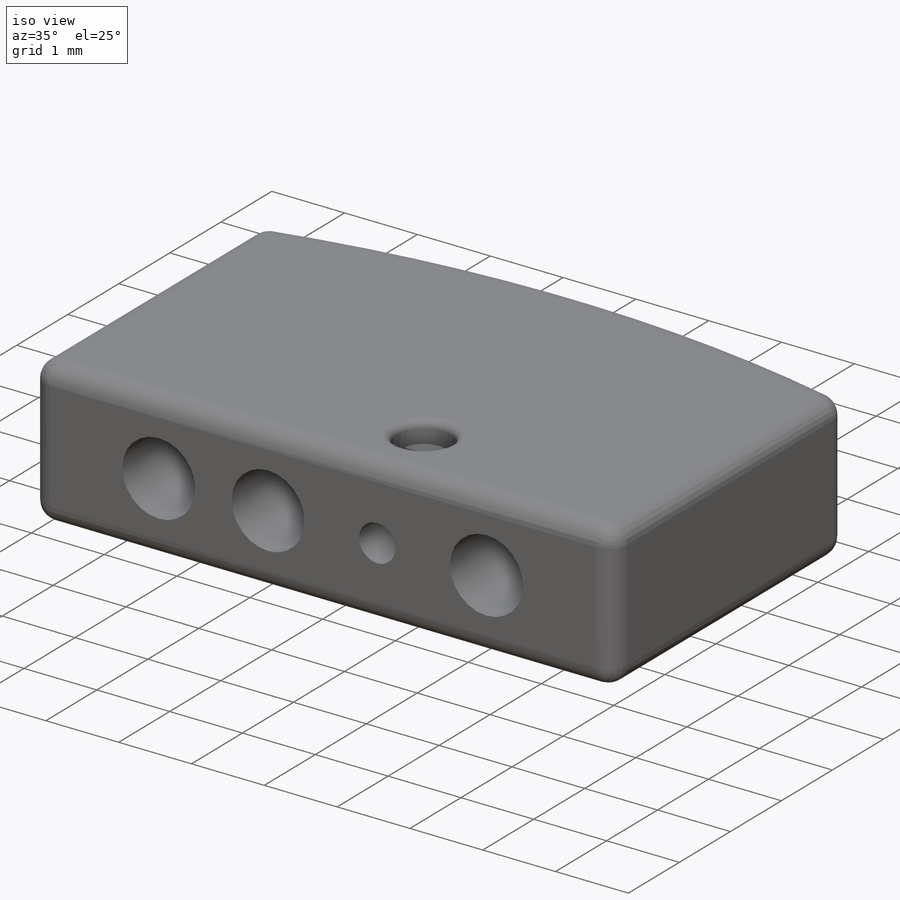
[diagram: iso view]
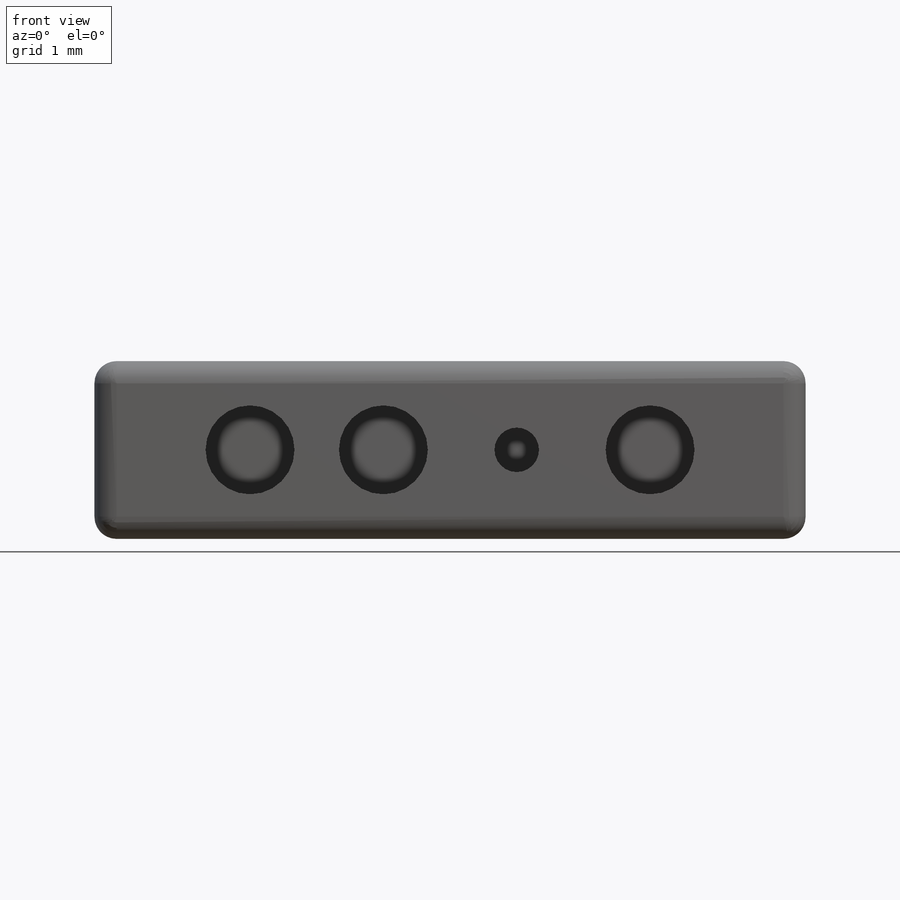
[diagram: front view]
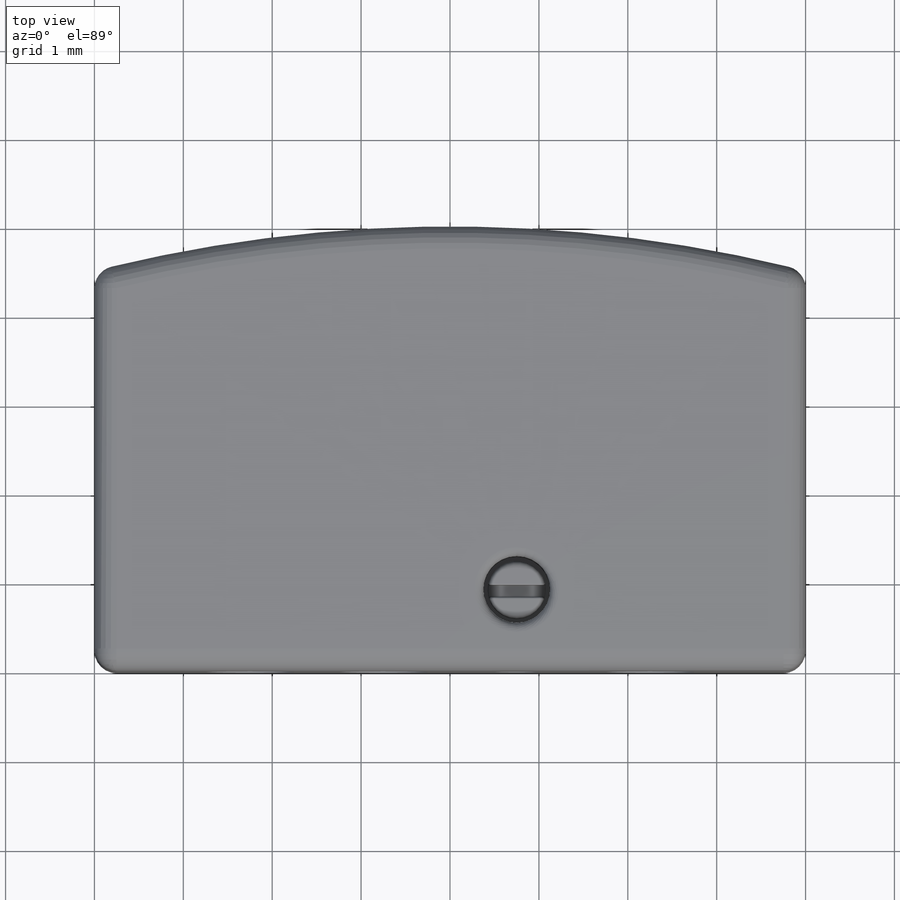
[diagram: top view]
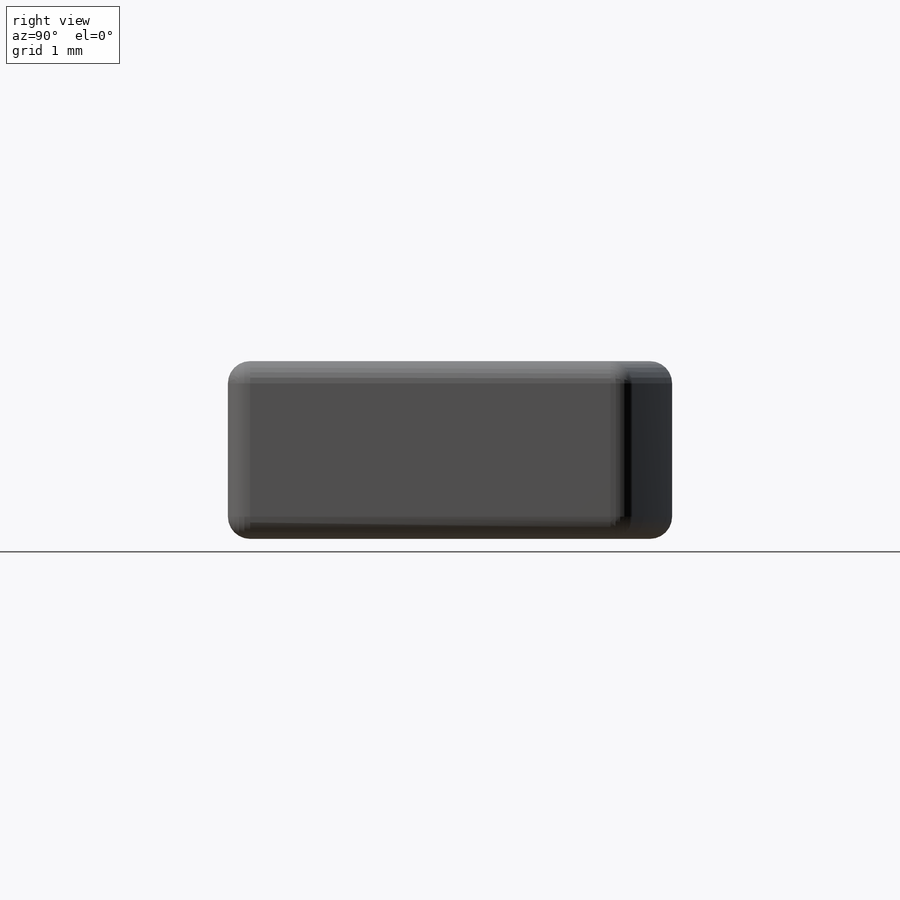
[diagram: right view]
SOLIDWORKS PART (.sldprt)
format: sldprt  version: not decoded by parser v0  size: 487,424 bytes
history: native  units: mm
features: sketch x6, fillet x5, cut_extrude x4, extrude x2, material x1, mirror x1 (+11 scaffold rows collapsed)
feature tree (30):
  scaffold x11  (default folders/planes/origin — collapsed)
  material  "Material <not specified>"
  sketch  "Sketch1"  dims[D1=8.0mm D2=4.0mm D3=2.0mm D4=1.0mm]
  extrude  "Boss-Extrude1"  Depth=5mm
  sketch  "Sketch2"  dims[D1=0.5mm D2=0.5mm]
  cut_extrude  "Cut-Extrude1"  Depth=5mm
  sketch  "Sketch3"  dims[D2=1.0mm D4=0.5mm D6=1.0mm D8=1.0mm D1=0.75mm D3=0.75mm D5=1.5mm D7=1.5mm]
  cut_extrude  "Cut-Extrude2"  Depth=2mm
  fillet  "Fillet1"  Radius=0.25mm
  sketch  "Sketch4"  dims[D1=0.75mm]
  cut_extrude  "Cut-Extrude3"  Depth=0.5mm
  sketch  "Sketch5"  dims[D1=0.65mm]
  extrude  "Boss-Extrude2"  Depth=0.25mm
  sketch  "Sketch6"  dims[D1=~0.692881mm]
  cut_extrude  "Cut-Extrude4"  Depth=0.1mm
  fillet  "Fillet2"  Radius=0.1mm
  fillet  "Fillet3"  Radius=0.05mm
  mirror  "Mirror3"
  fillet  "Fillet4"  Radius=0.02mm
  fillet  "Fillet5"  Radius=0.02mm
decode coverage: 17 of 18 modeling features carry decoded parameters
note: ~ marks probable driven/reference dimensions
note: suppression state not decoded; provenance and decode notes live in map.json
